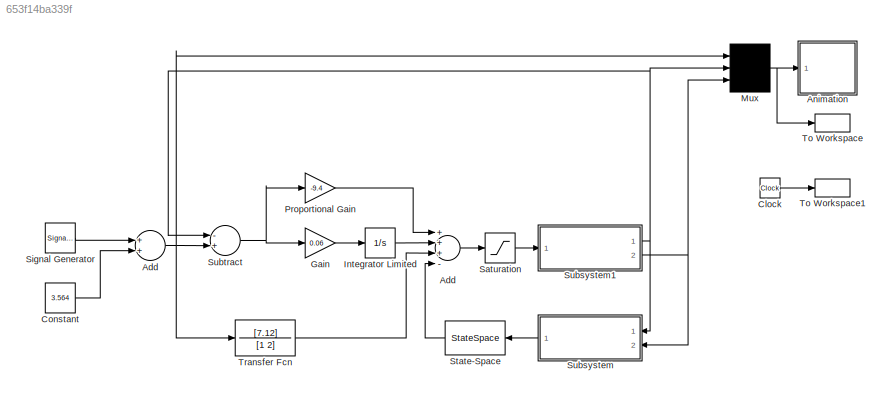
MODEL slx_653f14ba339f
KIND model
CONFIG AbsTol = auto
CONFIG EnableMultiTasking = off
CONFIG FixedStep = auto
CONFIG MaxStep = auto
CONFIG MinStep = auto
CONFIG RelTol = 1e-3
CONFIG SampleTimeConstraint = Unconstrained
CONFIG Solver = VariableStepAuto
CONFIG SolverName = VariableStepAuto
CONFIG StartTime = 0.0
CONFIG StopTime = inf
BLOCK [Sum] Add
  InputSameDT = off
  Inputs = +++-
  OutDataTypeStr = Inherit: Inherit via internal rule
  Ports = [4, 1]
  SaturateOnIntegerOverflow = off
BLOCK [Sum] Add 
  InputSameDT = off
  OutDataTypeStr = Inherit: Inherit via internal rule
  Ports = [2, 1]
  SaturateOnIntegerOverflow = off
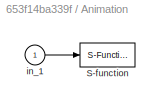
BLOCK [SubSystem] Animation
  Ports = [1]
  RequestExecContextInheritance = off
BLOCK [S-Function] Animation/S-function
  DeleteFcn = pendan([],[],[],'DeleteBlock');
  EnableBusSupport = off
  FunctionName = pendan
  Parameters = RefBlock
  Ports = [1]
  SFcnIsStateOwnerBlock = off
  SFunctionDeploymentMode = off
BLOCK [Inport] Animation/in_1
  IconDisplay = Port number
BLOCK [Clock] Clock
BLOCK [Constant] Constant
  Value = 3.564
BLOCK [Gain] Gain
  Gain = 0.06
  SaturateOnIntegerOverflow = off
BLOCK [Integrator] Integrator Limited
  LimitOutput = on
  LowerSaturationLimit = -5
  Ports = [1, 1]
  UpperSaturationLimit = 5
BLOCK [Mux] Mux
  DisplayOption = bar
  Inputs = 3
  Ports = [3, 1]
BLOCK [Gain] Proportional Gain
  Gain = -9.4
  SaturateOnIntegerOverflow = off
BLOCK [Saturate] Saturation
  InputPortMap = u0
  LowerLimit = -10
  Ports = [1, 1]
  UpperLimit = 10
BLOCK [SignalGenerator] Signal Generator 
  Amplitude = 0.00000
  Frequency = 0.40000
  Ports = [0, 1]
  Units = rad/sec
BLOCK [StateSpace] State-Space
  A = []
  B = []
  C = []
  D = K
  InitialCondition = 0
  Ports = [1, 1]
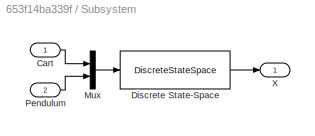
BLOCK [SubSystem] Subsystem
  Ports = [2, 1]
  RequestExecContextInheritance = off
BLOCK [Inport] Subsystem/Cart
  IconDisplay = Port number
BLOCK [DiscreteStateSpace] Subsystem/Discrete State-Space 
  A = zeros(2)
  B = -eye(2)/Ts
  C = [0 0; 1 0; 0 0; 0 1]
  D = [1 0; 1/Ts 0; 0 1; 0 1/Ts]
  SampleTime = Ts
BLOCK [Mux] Subsystem/Mux
  DisplayOption = bar
  Inputs = 2
  Ports = [2, 1]
BLOCK [Inport] Subsystem/Pendulum
  IconDisplay = Port number
  Port = 2
BLOCK [Outport] Subsystem/X
  IconDisplay = Port number
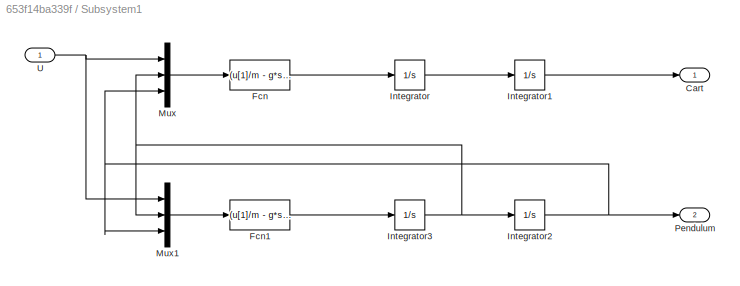
BLOCK [SubSystem] Subsystem1
  Ports = [1, 2]
  RequestExecContextInheritance = off
BLOCK [Outport] Subsystem1/Cart
  IconDisplay = Port number
BLOCK [Fcn] Subsystem1/Fcn
  Expr = (u[1]/m - g*sin(u[3])*cos(u[3]) + l*power(u[2],2)*sin(u[3]))/(Mcart/m + power(sin(u[3]),2))
BLOCK [Fcn] Subsystem1/Fcn1
  Expr = (u[1]/m - g*sin(u[3])*cos(u[3]) + l*power(u[2],2)*sin(u[3]))/(Mcart/m + power(sin(u[3]),2))
BLOCK [Integrator] Subsystem1/Integrator
  Ports = [1, 1]
BLOCK [Integrator] Subsystem1/Integrator1
  Ports = [1, 1]
BLOCK [Integrator] Subsystem1/Integrator2
  Ports = [1, 1]
BLOCK [Integrator] Subsystem1/Integrator3
  Ports = [1, 1]
BLOCK [Mux] Subsystem1/Mux
  DisplayOption = bar
  Inputs = 3
  Ports = [3, 1]
BLOCK [Mux] Subsystem1/Mux1
  DisplayOption = bar
  Inputs = 3
  Ports = [3, 1]
BLOCK [Outport] Subsystem1/Pendulum
  IconDisplay = Port number
  Port = 2
BLOCK [Inport] Subsystem1/U
  IconDisplay = Port number
BLOCK [Sum] Subtract
  InputSameDT = off
  Inputs = -+
  OutDataTypeStr = Inherit: Inherit via internal rule
  Ports = [2, 1]
  SaturateOnIntegerOverflow = off
BLOCK [ToWorkspace] To Workspace
  Ports = [1]
  SampleTime = 0.1
  VariableName = y
BLOCK [ToWorkspace] To Workspace1
  Ports = [1]
  SampleTime = 0.1
  VariableName = t
BLOCK [TransferFcn] Transfer Fcn
  ContinuousStateAttributes = "
  Denominator = [1 2]
  Numerator = [7.12]
NET Add :1 -> Mux:1, Subtract:2, Transfer Fcn:1
LINE Add:1 -> Saturation:1
LINE Animation/in_1:1 -> Animation/S-function:1
LINE Clock:1 -> To Workspace1:1
LINE Constant:1 -> Add :2
LINE Gain:1 -> Integrator Limited:1
LINE Integrator Limited:1 -> Add:2
NET Mux:1 -> Animation:1, To Workspace:1
LINE Proportional Gain:1 -> Add:1
LINE Saturation:1 -> Subsystem1:1
LINE Signal Generator :1 -> Add :1
LINE State-Space:1 -> Add:4
LINE Subsystem/Cart:1 -> Subsystem/Mux:1
LINE Subsystem/Discrete State-Space :1 -> Subsystem/X:1
LINE Subsystem/Mux:1 -> Subsystem/Discrete State-Space :1
LINE Subsystem/Pendulum:1 -> Subsystem/Mux:2
LINE Subsystem1/Fcn1:1 -> Subsystem1/Integrator3:1
LINE Subsystem1/Fcn:1 -> Subsystem1/Integrator:1
LINE Subsystem1/Integrator1:1 -> Subsystem1/Cart:1
NET Subsystem1/Integrator2:1 -> Subsystem1/Mux1:3, Subsystem1/Mux:3, Subsystem1/Pendulum:1
NET Subsystem1/Integrator3:1 -> Subsystem1/Integrator2:1, Subsystem1/Mux1:2, Subsystem1/Mux:2
LINE Subsystem1/Integrator:1 -> Subsystem1/Integrator1:1
LINE Subsystem1/Mux1:1 -> Subsystem1/Fcn1:1
LINE Subsystem1/Mux:1 -> Subsystem1/Fcn:1
NET Subsystem1/U:1 -> Subsystem1/Mux1:1, Subsystem1/Mux:1
NET Subsystem1:1 -> Mux:2, Subsystem:1, Subtract:1
NET Subsystem1:2 -> Mux:3, Subsystem:2
LINE Subsystem:1 -> State-Space:1
NET Subtract:1 -> Gain:1, Proportional Gain:1
LINE Transfer Fcn:1 -> Add:3
note: NET lines group one-source signal fan-out (src -> all destinations, sorted); 1:1 wires keep LINE
